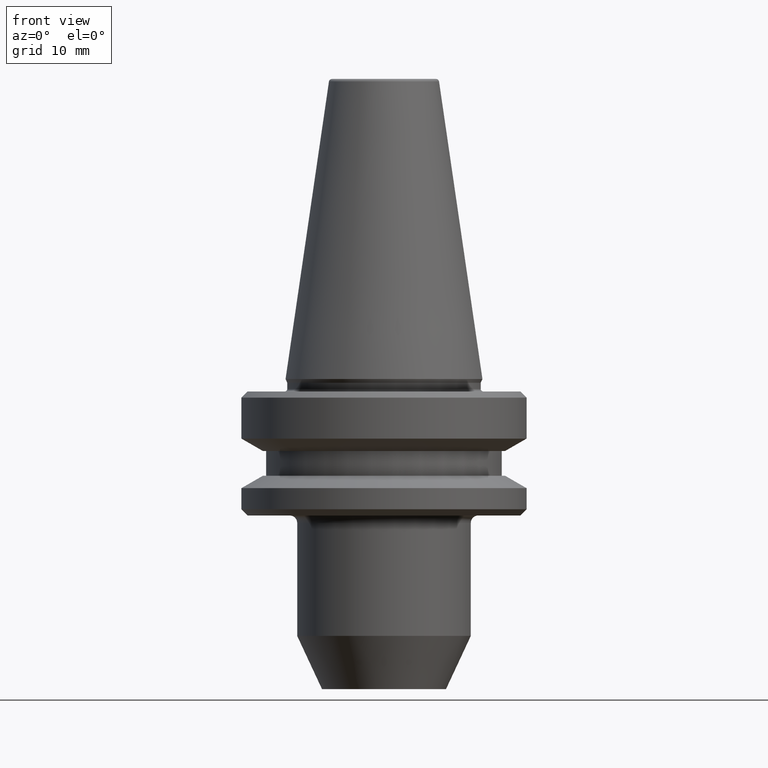
[diagram: clean part render]
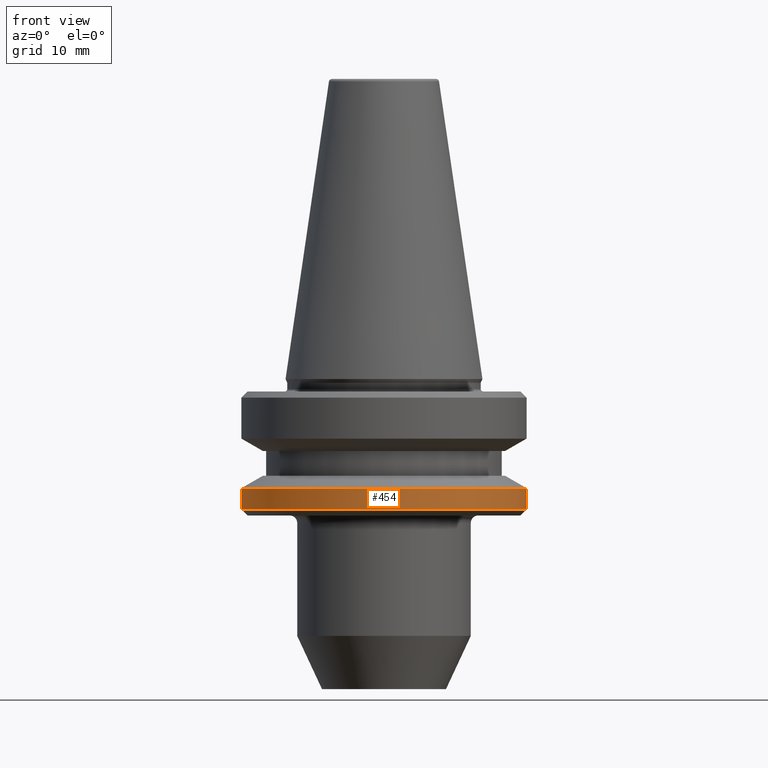
[diagram: same view with one face highlighted and labeled with its STEP entity id]
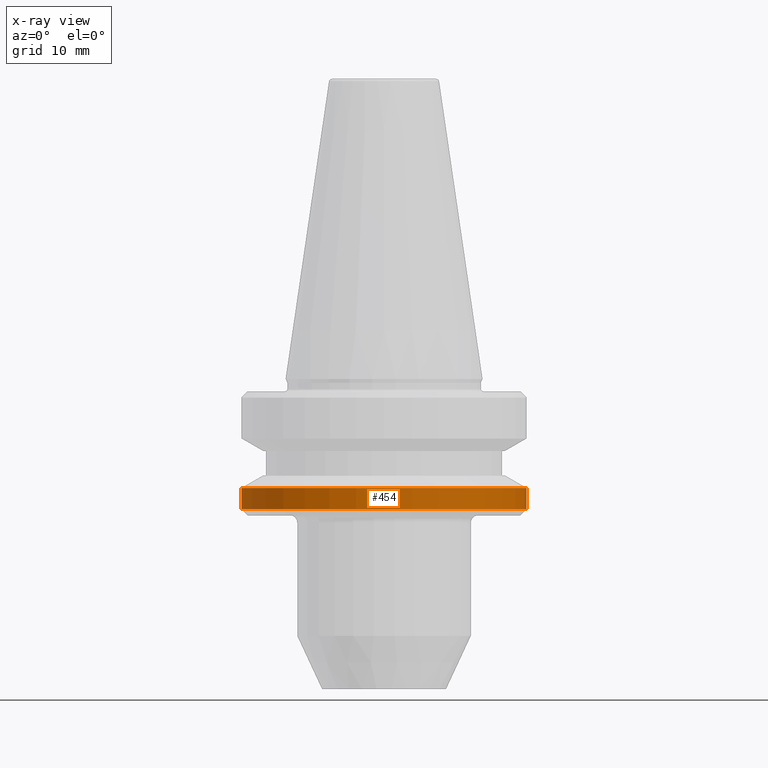
[diagram: x-ray of the same camera — body ghosted, the highlighted face saturated]
A machine part, front view. The second image highlights one B-rep face of the part: STEP entity #454.
The next image is the same camera in x-ray: the body ghosted, the highlighted face saturated — about 0% of this face is hidden behind the body in this view.
In plain terms, the highlighted cylindrical surface (partial cylindrical patch) has radius 23 mm, axis along (-0, -0, 1).
Its self-contained STEP definition (entity closure, byte-faithful):
#2 = CYLINDRICAL_SURFACE ( 'NONE', #528, 22.99999999999990800 ) ;
#3 = DIRECTION ( 'NONE',  ( 1.000000000000000000, 0.0000000000000000000, 0.0000000000000000000 ) ) ;
#8 = EDGE_CURVE ( 'NONE', #522, #725, #570, .T. ) ;
#34 = ORIENTED_EDGE ( 'NONE', *, *, #669, .F. ) ;
#77 = DIRECTION ( 'NONE',  ( -0.0000000000000000000, -0.0000000000000000000, 1.000000000000000000 ) ) ;
#87 = DIRECTION ( 'NONE',  ( 1.000000000000000000, 0.0000000000000000000, 0.0000000000000000000 ) ) ;
#130 = VERTEX_POINT ( 'NONE', #1001 ) ;
#180 = VERTEX_POINT ( 'NONE', #622 ) ;
#243 = DIRECTION ( 'NONE',  ( -0.0000000000000000000, -0.0000000000000000000, 1.000000000000000000 ) ) ;
#272 = CARTESIAN_POINT ( 'NONE',  ( 22.99999999999990800, 0.0000000000000000000, 80.37668748141543100 ) ) ;
#304 = DIRECTION ( 'NONE',  ( -0.0000000000000000000, -0.0000000000000000000, 1.000000000000000000 ) ) ;
#315 = CIRCLE ( 'NONE', #990, 22.99999999999990800 ) ;
#454 = ADVANCED_FACE ( 'NONE', ( #841 ), #2, .T. ) ;
#456 = LINE ( 'NONE', #750, #851 ) ;
#469 = CARTESIAN_POINT ( 'NONE',  ( 0.0000000000000000000, 0.0000000000000000000, 80.37668748141543100 ) ) ;
#499 = VECTOR ( 'NONE', #77, 1000.000000000000000 ) ;
#513 = CARTESIAN_POINT ( 'NONE',  ( 0.0000000000000000000, 0.0000000000000000000, -17.59988266494572100 ) ) ;
#522 = VERTEX_POINT ( 'NONE', #639 ) ;
#528 = AXIS2_PLACEMENT_3D ( 'NONE', #469, #243, #87 ) ;
#539 = AXIS2_PLACEMENT_3D ( 'NONE', #882, #796, #861 ) ;
#566 = EDGE_LOOP ( 'NONE', ( #34, #888, #586, #747 ) ) ;
#570 = CIRCLE ( 'NONE', #539, 22.99999999999990800 ) ;
#586 = ORIENTED_EDGE ( 'NONE', *, *, #838, .T. ) ;
#622 = CARTESIAN_POINT ( 'NONE',  ( -22.99999999999990800, 2.816687638038901300E-015, -17.59988266494572100 ) ) ;
#639 = CARTESIAN_POINT ( 'NONE',  ( -22.99999999999990800, 2.816687638038901300E-015, -20.99999999999990800 ) ) ;
#669 = EDGE_CURVE ( 'NONE', #522, #180, #456, .T. ) ;
#705 = LINE ( 'NONE', #272, #499 ) ;
#725 = VERTEX_POINT ( 'NONE', #738 ) ;
#738 = CARTESIAN_POINT ( 'NONE',  ( 22.99999999999990800, 0.0000000000000000000, -20.99999999999990800 ) ) ;
#747 = ORIENTED_EDGE ( 'NONE', *, *, #818, .F. ) ;
#750 = CARTESIAN_POINT ( 'NONE',  ( -22.99999999999990800, 2.816687638038901300E-015, 80.37668748141543100 ) ) ;
#796 = DIRECTION ( 'NONE',  ( -0.0000000000000000000, -0.0000000000000000000, 1.000000000000000000 ) ) ;
#818 = EDGE_CURVE ( 'NONE', #180, #130, #315, .T. ) ;
#838 = EDGE_CURVE ( 'NONE', #725, #130, #705, .T. ) ;
#841 = FACE_OUTER_BOUND ( 'NONE', #566, .T. ) ;
#851 = VECTOR ( 'NONE', #304, 1000.000000000000000 ) ;
#861 = DIRECTION ( 'NONE',  ( 1.000000000000000000, 0.0000000000000000000, 0.0000000000000000000 ) ) ;
#882 = CARTESIAN_POINT ( 'NONE',  ( 0.0000000000000000000, 0.0000000000000000000, -20.99999999999990800 ) ) ;
#888 = ORIENTED_EDGE ( 'NONE', *, *, #8, .T. ) ;
#959 = DIRECTION ( 'NONE',  ( -0.0000000000000000000, -0.0000000000000000000, 1.000000000000000000 ) ) ;
#990 = AXIS2_PLACEMENT_3D ( 'NONE', #513, #959, #3 ) ;
#1001 = CARTESIAN_POINT ( 'NONE',  ( 22.99999999999990800, 0.0000000000000000000, -17.59988266494572100 ) ) ;